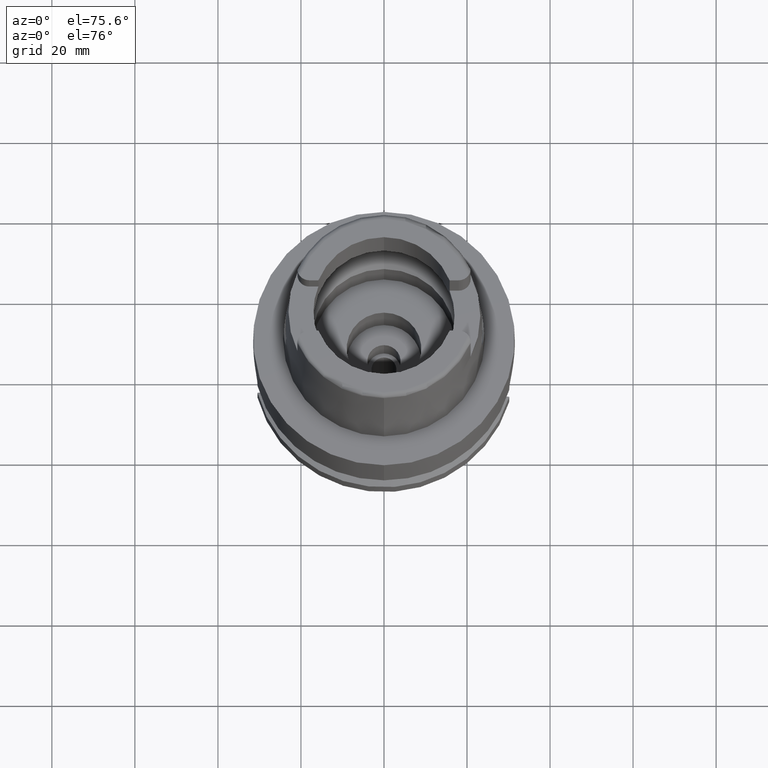
[diagram: clean part render]
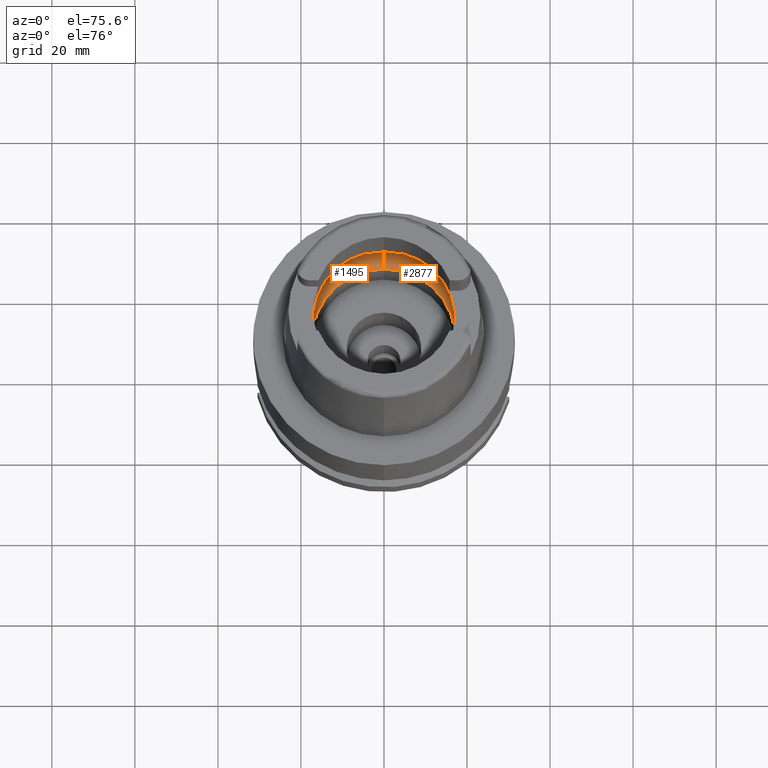
[diagram: same view with one multi-face feature highlighted, each face labeled with its STEP entity id]
A machine part, auxiliary view. The highlighted faces form ONE feature: a constant-radius fillet chain: 2 tangent blend faces with common blend radius 8 mm. The faces share edges in the B-rep.
Their STEP definitions:
[1] entity #1495 (Torus):
#4 = CARTESIAN_POINT ( 'NONE',  ( -19.92705278000903846, 1.287130048445782382, 5.477772474800913116 ) ) ;
#207 = CARTESIAN_POINT ( 'NONE',  ( -19.94501428475999916, 0.0000000000000000000, 5.250000000000000000 ) ) ;
#222 = ORIENTED_EDGE ( 'NONE', *, *, #1696, .F. ) ;
#265 = DIRECTION ( 'NONE',  ( 1.000000000000000000, 0.0000000000000000000, 0.0000000000000000000 ) ) ;
#297 = EDGE_CURVE ( 'NONE', #4978, #3960, #2885, .T. ) ;
#300 = FACE_OUTER_BOUND ( 'NONE', #4637, .T. ) ;
#401 = AXIS2_PLACEMENT_3D ( 'NONE', #1483, #4864, #1508 ) ;
#492 = AXIS2_PLACEMENT_3D ( 'NONE', #4832, #5261, #4887 ) ;
#777 = AXIS2_PLACEMENT_3D ( 'NONE', #3372, #795, #5057 ) ;
#795 = DIRECTION ( 'NONE',  ( 0.0000000000000000000, 0.0000000000000000000, 1.000000000000000000 ) ) ;
#802 = CARTESIAN_POINT ( 'NONE',  ( -19.92590934684917769, 1.321967521133246448, 5.490731887689705992 ) ) ;
#826 = CARTESIAN_POINT ( 'NONE',  ( -19.90995255595169056, 1.795933884452548535, 5.670404923156593391 ) ) ;
#988 = CARTESIAN_POINT ( 'NONE',  ( -19.84575864665999845, 2.479085262491000030, 6.186348233825000875 ) ) ;
#1221 = CARTESIAN_POINT ( 'NONE',  ( -19.92606541691252531, 1.317269316937897727, 5.488968411663657676 ) ) ;
#1374 = ORIENTED_EDGE ( 'NONE', *, *, #4957, .T. ) ;
#1384 = CARTESIAN_POINT ( 'NONE',  ( 0.0000000000000000000, -20.00000000000000000, 6.186348233825000875 ) ) ;
#1391 = CARTESIAN_POINT ( 'NONE',  ( -19.91447754460955721, -1.610668511863835306, 5.613000592307881398 ) ) ;
#1409 = DIRECTION ( 'NONE',  ( 0.0000000000000000000, 0.0000000000000000000, -1.000000000000000000 ) ) ;
#1415 = CARTESIAN_POINT ( 'NONE',  ( -19.84575864665999845, -2.479085262491000030, 6.186348233825000875 ) ) ;
#1445 = CARTESIAN_POINT ( 'NONE',  ( -19.90056097910782995, -1.871180122140724489, 5.748256501260665452 ) ) ;
#1483 = CARTESIAN_POINT ( 'NONE',  ( 0.0000000000000000000, 1.300407714776999850E-14, 6.186348233825000875 ) ) ;
#1495 = ADVANCED_FACE ( 'NONE', ( #300 ), #3403, .F. ) ;
#1508 = DIRECTION ( 'NONE',  ( 0.0000000000000000000, -1.000000000000000000, 0.0000000000000000000 ) ) ;
#1622 = CARTESIAN_POINT ( 'NONE',  ( -19.93292026788402538, 1.081805184546577481, 5.409024518554498506 ) ) ;
#1646 = B_SPLINE_CURVE_WITH_KNOTS ( 'NONE', 3,
 ( #2935, #3354, #4619, #3298, #5064, #1622, #3327, #2890, #4, #5017, #1221, #802, #826, #1674, #2492 ),
 .UNSPECIFIED., .F., .F.,
 ( 4, 2, 2, 1, 1, 1, 2, 2, 4 ),
 ( 0.0000000000000000000, 0.2499999999999999445, 0.3749999999999998335, 0.4374999999999993894, 0.4687499999999992784, 0.4843749999999993894, 0.4921874999999996114, 0.4999999999999998335, 1.000000000000000000 ),
 .UNSPECIFIED. ) ;
#1674 = CARTESIAN_POINT ( 'NONE',  ( -19.88331748558554679, 2.178416437689206564, 5.921431423074808187 ) ) ;
#1696 = EDGE_CURVE ( 'NONE', #3960, #4539, #2063, .T. ) ;
#1745 = VERTEX_POINT ( 'NONE', #4552 ) ;
#1855 = CARTESIAN_POINT ( 'NONE',  ( -19.92517005465364477, -1.343825724865890026, 5.499044007117803723 ) ) ;
#1895 = ORIENTED_EDGE ( 'NONE', *, *, #4053, .F. ) ;
#2063 = CIRCLE ( 'NONE', #401, 20.00000000000000000 ) ;
#2195 = CARTESIAN_POINT ( 'NONE',  ( -19.93856411452979316, -0.9461205214876701186, 5.348254081022309592 ) ) ;
#2211 = CARTESIAN_POINT ( 'NONE',  ( -19.84575864665999845, -2.479085262491000030, 6.186348233825000875 ) ) ;
#2347 = DIRECTION ( 'NONE',  ( 0.0000000000000000000, 0.0000000000000000000, -1.000000000000000000 ) ) ;
#2358 = EDGE_CURVE ( 'NONE', #2882, #4978, #3527, .T. ) ;
#2492 = CARTESIAN_POINT ( 'NONE',  ( -19.84575864665999845, 2.479085262491000030, 6.186348233825000875 ) ) ;
#2584 = VERTEX_POINT ( 'NONE', #988 ) ;
#2643 = CARTESIAN_POINT ( 'NONE',  ( -19.88058469725548960, -2.158465908504980213, 5.925243384237681710 ) ) ;
#2687 = AXIS2_PLACEMENT_3D ( 'NONE', #3913, #1409, #2692 ) ;
#2692 = DIRECTION ( 'NONE',  ( -0.9922879323327794543, 0.1239542631244973381, 0.0000000000000000000 ) ) ;
#2709 = CIRCLE ( 'NONE', #5375, 7.999999999999992895 ) ;
#2882 = VERTEX_POINT ( 'NONE', #4567 ) ;
#2885 = CIRCLE ( 'NONE', #492, 7.999999999999992895 ) ;
#2890 = CARTESIAN_POINT ( 'NONE',  ( -19.92839760948977812, 1.244563320345577928, 5.462382395228216225 ) ) ;
#2935 = CARTESIAN_POINT ( 'NONE',  ( -19.94501428475999916, 0.0000000000000000000, 5.250000000000000000 ) ) ;
#3049 = AXIS2_PLACEMENT_3D ( 'NONE', #3635, #2347, #5334 ) ;
#3063 = CARTESIAN_POINT ( 'NONE',  ( -19.86453683997870456, -2.328760665727150680, 6.053898476926370620 ) ) ;
#3094 = CARTESIAN_POINT ( 'NONE',  ( -19.91819177005300645, -1.528964289322848114, 5.574905501562674282 ) ) ;
#3121 = CARTESIAN_POINT ( 'NONE',  ( -19.92466833620654398, -1.358330481555162672, 5.504646120092099970 ) ) ;
#3211 = ORIENTED_EDGE ( 'NONE', *, *, #3374, .F. ) ;
#3298 = CARTESIAN_POINT ( 'NONE',  ( -19.93856414242614861, 0.8186925878071447116, 5.338707303697744599 ) ) ;
#3327 = CARTESIAN_POINT ( 'NONE',  ( -19.93095499014168226, 1.158122409084411109, 5.432637980145560874 ) ) ;
#3354 = CARTESIAN_POINT ( 'NONE',  ( -19.94501428476000982, 0.2480393544993953481, 5.249999999999997335 ) ) ;
#3372 = CARTESIAN_POINT ( 'NONE',  ( 0.0000000000000000000, 1.300407714776999850E-14, 0.1500000000000999700 ) ) ;
#3374 = EDGE_CURVE ( 'NONE', #4539, #4533, #4636, .T. ) ;
#3403 = TOROIDAL_SURFACE ( 'NONE', #3049, 12.00000000000000000, 8.000000000000000000 ) ;
#3484 = CARTESIAN_POINT ( 'NONE',  ( -19.90653715571480120, -1.770134510244638193, 5.691949820981152541 ) ) ;
#3527 = CIRCLE ( 'NONE', #777, 17.25000000000000000 ) ;
#3546 = CARTESIAN_POINT ( 'NONE',  ( -19.92207708731347537, -1.430235645114882326, 5.533216160818618334 ) ) ;
#3564 = CARTESIAN_POINT ( 'NONE',  ( -19.94501428475999916, 0.0000000000000000000, 5.250000000000000000 ) ) ;
#3635 = CARTESIAN_POINT ( 'NONE',  ( 0.0000000000000000000, 1.300407714776999850E-14, 6.186348233825000875 ) ) ;
#3649 = ORIENTED_EDGE ( 'NONE', *, *, #2358, .F. ) ;
#3711 = CARTESIAN_POINT ( 'NONE',  ( 0.0000000000000000000, 12.00000000000000000, 6.186348233825000875 ) ) ;
#3913 = CARTESIAN_POINT ( 'NONE',  ( 0.0000000000000000000, 1.300407714776999850E-14, 6.186348233825000875 ) ) ;
#3960 = VERTEX_POINT ( 'NONE', #1384 ) ;
#3982 = CARTESIAN_POINT ( 'NONE',  ( -19.92390775950450532, -1.380027868491152443, 5.513103966555285673 ) ) ;
#4053 = EDGE_CURVE ( 'NONE', #2584, #1745, #4285, .T. ) ;
#4147 = DIRECTION ( 'NONE',  ( 0.0000000000000000000, 0.6562500000000006661, -0.7545435292281016393 ) ) ;
#4224 = EDGE_CURVE ( 'NONE', #4533, #2584, #1646, .T. ) ;
#4285 = CIRCLE ( 'NONE', #2687, 20.00000000000001421 ) ;
#4299 = ORIENTED_EDGE ( 'NONE', *, *, #4224, .F. ) ;
#4330 = CARTESIAN_POINT ( 'NONE',  ( -19.92546220624969067, -1.335247853971804455, 5.495766252403495145 ) ) ;
#4435 = ORIENTED_EDGE ( 'NONE', *, *, #297, .F. ) ;
#4533 = VERTEX_POINT ( 'NONE', #3564 ) ;
#4539 = VERTEX_POINT ( 'NONE', #2211 ) ;
#4552 = CARTESIAN_POINT ( 'NONE',  ( 0.0000000000000000000, 20.00000000000000000, 6.186348233825000875 ) ) ;
#4567 = CARTESIAN_POINT ( 'NONE',  ( 0.0000000000000000000, 17.25000000000000000, 0.1499999999999999944 ) ) ;
#4619 = CARTESIAN_POINT ( 'NONE',  ( -19.94340174917653385, 0.4850934172101355468, 5.274617949540510331 ) ) ;
#4636 = B_SPLINE_CURVE_WITH_KNOTS ( 'NONE', 3,
 ( #1415, #3063, #2643, #1445, #3484, #1391, #3094, #3546, #3982, #3121, #1855, #4330, #2195, #5260, #207 ),
 .UNSPECIFIED., .F., .F.,
 ( 4, 2, 2, 1, 1, 1, 2, 2, 4 ),
 ( 0.0000000000000000000, 0.2500000000000004996, 0.3750000000000006106, 0.4375000000000004996, 0.4687500000000004996, 0.4843750000000006106, 0.4921875000000006661, 0.5000000000000006661, 1.000000000000000000 ),
 .UNSPECIFIED. ) ;
#4637 = EDGE_LOOP ( 'NONE', ( #222, #4435, #3649, #1374, #1895, #4299, #3211 ) ) ;
#4832 = CARTESIAN_POINT ( 'NONE',  ( 0.0000000000000000000, -12.00000000000000000, 6.186348233825000875 ) ) ;
#4864 = DIRECTION ( 'NONE',  ( 0.0000000000000000000, 0.0000000000000000000, -1.000000000000000000 ) ) ;
#4887 = DIRECTION ( 'NONE',  ( 0.0000000000000000000, -0.6562500000000006661, -0.7545435292281016393 ) ) ;
#4957 = EDGE_CURVE ( 'NONE', #2882, #1745, #2709, .T. ) ;
#4978 = VERTEX_POINT ( 'NONE', #4992 ) ;
#4992 = CARTESIAN_POINT ( 'NONE',  ( 0.0000000000000000000, -17.25000000000000000, 0.1500000000000999700 ) ) ;
#5017 = CARTESIAN_POINT ( 'NONE',  ( -19.92646225184126507, 1.305232378195160470, 5.484475898738186750 ) ) ;
#5057 = DIRECTION ( 'NONE',  ( 0.0000000000000000000, 1.000000000000000000, 0.0000000000000000000 ) ) ;
#5064 = CARTESIAN_POINT ( 'NONE',  ( -19.93654847294682142, 0.9262660664357793561, 5.364596220942165594 ) ) ;
#5260 = CARTESIAN_POINT ( 'NONE',  ( -19.94501428476000271, -0.4961205090555425579, 5.249999999999998224 ) ) ;
#5261 = DIRECTION ( 'NONE',  ( -1.000000000000000000, 0.0000000000000000000, 0.0000000000000000000 ) ) ;
#5334 = DIRECTION ( 'NONE',  ( 0.0000000000000000000, -1.000000000000000000, 0.0000000000000000000 ) ) ;
#5375 = AXIS2_PLACEMENT_3D ( 'NONE', #3711, #265, #4147 ) ;
[2] entity #2877 (Torus):
#66 = CARTESIAN_POINT ( 'NONE',  ( 0.0000000000000000000, 1.300407714776999850E-14, 6.186348233825000875 ) ) ;
#123 = CIRCLE ( 'NONE', #3224, 17.25000000000000000 ) ;
#150 = CARTESIAN_POINT ( 'NONE',  ( 19.84575864665999845, -2.479085262489999941, 6.186348233825000875 ) ) ;
#193 = EDGE_CURVE ( 'NONE', #4978, #2882, #123, .T. ) ;
#208 = CARTESIAN_POINT ( 'NONE',  ( 19.92606514397989059, -1.317277072706851904, 5.488971321412958737 ) ) ;
#211 = CIRCLE ( 'NONE', #1787, 20.00000000000000000 ) ;
#214 = CARTESIAN_POINT ( 'NONE',  ( 19.90056123285527789, 1.871176222693615943, 5.748254233190306373 ) ) ;
#265 = DIRECTION ( 'NONE',  ( 1.000000000000000000, 0.0000000000000000000, 0.0000000000000000000 ) ) ;
#297 = EDGE_CURVE ( 'NONE', #4978, #3960, #2885, .T. ) ;
#298 = EDGE_CURVE ( 'NONE', #2157, #1917, #4141, .T. ) ;
#327 = EDGE_LOOP ( 'NONE', ( #1014, #2676, #1396, #4588, #3677, #1147, #1257 ) ) ;
#484 = TOROIDAL_SURFACE ( 'NONE', #3688, 12.00000000000000000, 8.000000000000000000 ) ;
#487 = EDGE_CURVE ( 'NONE', #1745, #1501, #211, .T. ) ;
#488 = CARTESIAN_POINT ( 'NONE',  ( 0.0000000000000000000, 1.300407714776999850E-14, 0.1500000000000999700 ) ) ;
#492 = AXIS2_PLACEMENT_3D ( 'NONE', #4832, #5261, #4887 ) ;
#612 = CARTESIAN_POINT ( 'NONE',  ( 19.92390804158324613, 1.380020403602153722, 5.513101011347385061 ) ) ;
#1010 = CARTESIAN_POINT ( 'NONE',  ( 19.90995224940896335, -1.795938227408923726, 5.670407759516152169 ) ) ;
#1014 = ORIENTED_EDGE ( 'NONE', *, *, #1473, .F. ) ;
#1094 = CARTESIAN_POINT ( 'NONE',  ( 19.92590906856741739, -1.321975393466675808, 5.490734853381008307 ) ) ;
#1102 = CARTESIAN_POINT ( 'NONE',  ( 19.92207737119581168, 1.430228553718336348, 5.533213232082355937 ) ) ;
#1134 = CARTESIAN_POINT ( 'NONE',  ( 19.93856420767916759, 0.9461146681545778980, 5.348252842338863999 ) ) ;
#1147 = ORIENTED_EDGE ( 'NONE', *, *, #3483, .F. ) ;
#1240 = DIRECTION ( 'NONE',  ( 0.0000000000000000000, 0.0000000000000000000, -1.000000000000000000 ) ) ;
#1257 = ORIENTED_EDGE ( 'NONE', *, *, #298, .F. ) ;
#1384 = CARTESIAN_POINT ( 'NONE',  ( 0.0000000000000000000, -20.00000000000000000, 6.186348233825000875 ) ) ;
#1396 = ORIENTED_EDGE ( 'NONE', *, *, #4957, .F. ) ;
#1446 = CARTESIAN_POINT ( 'NONE',  ( 19.93654835100833367, -0.9262716855155007645, 5.364597633136126476 ) ) ;
#1455 = CARTESIAN_POINT ( 'NONE',  ( 19.91447782633000330, 1.610662747508702086, 5.612997844426586447 ) ) ;
#1473 = EDGE_CURVE ( 'NONE', #1501, #2157, #3927, .T. ) ;
#1487 = CARTESIAN_POINT ( 'NONE',  ( 19.84575864665999845, 2.479085262491000030, 6.186348233825000875 ) ) ;
#1501 = VERTEX_POINT ( 'NONE', #3578 ) ;
#1505 = CARTESIAN_POINT ( 'NONE',  ( 0.0000000000000000000, 1.300407714776999850E-14, 6.186348233825000875 ) ) ;
#1507 = CARTESIAN_POINT ( 'NONE',  ( 19.92705252129803029, -1.287137646786902012, 5.477775250979194155 ) ) ;
#1745 = VERTEX_POINT ( 'NONE', #4552 ) ;
#1787 = AXIS2_PLACEMENT_3D ( 'NONE', #66, #3452, #4709 ) ;
#1856 = CARTESIAN_POINT ( 'NONE',  ( 19.94501428475999916, -0.2480409057309866105, 5.249999999999999112 ) ) ;
#1862 = CARTESIAN_POINT ( 'NONE',  ( 19.94501428475999916, 0.4961173928737935279, 5.250000000000000888 ) ) ;
#1883 = CARTESIAN_POINT ( 'NONE',  ( 19.84575864665999845, -2.479085262489999941, 6.186348233825000875 ) ) ;
#1917 = VERTEX_POINT ( 'NONE', #150 ) ;
#1947 = CARTESIAN_POINT ( 'NONE',  ( 19.92839737014920942, -1.244570694301886604, 5.462384987445608076 ) ) ;
#2157 = VERTEX_POINT ( 'NONE', #4510 ) ;
#2250 = CARTESIAN_POINT ( 'NONE',  ( 19.93095478763670059, -1.158129320264685180, 5.432640215635148095 ) ) ;
#2368 = DIRECTION ( 'NONE',  ( 0.9922879323327794543, -0.1239542631244973381, 0.0000000000000000000 ) ) ;
#2375 = CARTESIAN_POINT ( 'NONE',  ( 19.92546248860871927, 1.335239979082043948, 5.495763251848394759 ) ) ;
#2400 = CARTESIAN_POINT ( 'NONE',  ( 19.90653742518825453, 1.770129897938285568, 5.691947325584132855 ) ) ;
#2467 = FACE_OUTER_BOUND ( 'NONE', #327, .T. ) ;
#2644 = DIRECTION ( 'NONE',  ( 0.0000000000000000000, 0.0000000000000000000, 1.000000000000000000 ) ) ;
#2676 = ORIENTED_EDGE ( 'NONE', *, *, #487, .F. ) ;
#2709 = CIRCLE ( 'NONE', #5375, 7.999999999999992895 ) ;
#2739 = CARTESIAN_POINT ( 'NONE',  ( 19.92646198462450258, -1.305240071194263773, 5.484478754908657550 ) ) ;
#2767 = CARTESIAN_POINT ( 'NONE',  ( 19.86453694704406558, 2.328759808639310869, 6.053897721753374483 ) ) ;
#2877 = ADVANCED_FACE ( 'NONE', ( #2467 ), #484, .F. ) ;
#2882 = VERTEX_POINT ( 'NONE', #4567 ) ;
#2885 = CIRCLE ( 'NONE', #492, 7.999999999999992895 ) ;
#2889 = CARTESIAN_POINT ( 'NONE',  ( 0.0000000000000000000, 1.300407714776999850E-14, 6.186348233825000875 ) ) ;
#3122 = CARTESIAN_POINT ( 'NONE',  ( 19.94340172595015304, -0.4850964368296419305, 5.274618258025038919 ) ) ;
#3162 = CARTESIAN_POINT ( 'NONE',  ( 19.92466861724647842, 1.358322854854825179, 5.504643156173055552 ) ) ;
#3212 = CARTESIAN_POINT ( 'NONE',  ( 19.91819205506146773, 1.528957928330905380, 5.574902649599744464 ) ) ;
#3224 = AXIS2_PLACEMENT_3D ( 'NONE', #488, #2644, #3923 ) ;
#3240 = CARTESIAN_POINT ( 'NONE',  ( 19.88058488114089428, 2.158463974390028017, 5.925241924213342060 ) ) ;
#3267 = CARTESIAN_POINT ( 'NONE',  ( 19.92517033494197776, 1.343817989907872601, 5.499041037985621827 ) ) ;
#3452 = DIRECTION ( 'NONE',  ( 0.0000000000000000000, 0.0000000000000000000, -1.000000000000000000 ) ) ;
#3483 = EDGE_CURVE ( 'NONE', #1917, #3960, #3930, .T. ) ;
#3578 = CARTESIAN_POINT ( 'NONE',  ( 19.84575864665999845, 2.479085262491000030, 6.186348233825000875 ) ) ;
#3631 = CARTESIAN_POINT ( 'NONE',  ( 19.88331727194833576, -2.178418147926865611, 5.921432929951146562 ) ) ;
#3656 = CARTESIAN_POINT ( 'NONE',  ( 19.93292009368618878, -1.081811675276309170, 5.409026469001385173 ) ) ;
#3677 = ORIENTED_EDGE ( 'NONE', *, *, #297, .T. ) ;
#3688 = AXIS2_PLACEMENT_3D ( 'NONE', #2889, #1240, #4235 ) ;
#3711 = CARTESIAN_POINT ( 'NONE',  ( 0.0000000000000000000, 12.00000000000000000, 6.186348233825000875 ) ) ;
#3923 = DIRECTION ( 'NONE',  ( 0.0000000000000000000, -1.000000000000000000, 0.0000000000000000000 ) ) ;
#3927 = B_SPLINE_CURVE_WITH_KNOTS ( 'NONE', 3,
 ( #1487, #2767, #3240, #214, #2400, #1455, #3212, #1102, #612, #3162, #3267, #2375, #1134, #1862, #4481 ),
 .UNSPECIFIED., .F., .F.,
 ( 4, 2, 2, 1, 1, 1, 2, 2, 4 ),
 ( 0.0000000000000000000, 0.2500000000000076050, 0.3750000000000112688, 0.4375000000000131006, 0.4687500000000139333, 0.4843750000000144329, 0.4921875000000146549, 0.5000000000000147660, 1.000000000000000000 ),
 .UNSPECIFIED. ) ;
#3930 = CIRCLE ( 'NONE', #5068, 20.00000000000001421 ) ;
#3960 = VERTEX_POINT ( 'NONE', #1384 ) ;
#4043 = CARTESIAN_POINT ( 'NONE',  ( 19.94501428475999916, 0.0000000000000000000, 5.250000000000000000 ) ) ;
#4072 = DIRECTION ( 'NONE',  ( 0.0000000000000000000, 0.0000000000000000000, -1.000000000000000000 ) ) ;
#4141 = B_SPLINE_CURVE_WITH_KNOTS ( 'NONE', 3,
 ( #4043, #1856, #3122, #4473, #1446, #3656, #2250, #1947, #1507, #2739, #208, #1094, #1010, #3631, #1883 ),
 .UNSPECIFIED., .F., .F.,
 ( 4, 2, 2, 1, 1, 1, 2, 2, 4 ),
 ( 0.0000000000000000000, 0.2499999999999984457, 0.3749999999999977240, 0.4374999999999975020, 0.4687499999999973355, 0.4843749999999972244, 0.4921874999999972800, 0.4999999999999973355, 1.000000000000000000 ),
 .UNSPECIFIED. ) ;
#4147 = DIRECTION ( 'NONE',  ( 0.0000000000000000000, 0.6562500000000006661, -0.7545435292281016393 ) ) ;
#4235 = DIRECTION ( 'NONE',  ( 0.0000000000000000000, -1.000000000000000000, 0.0000000000000000000 ) ) ;
#4473 = CARTESIAN_POINT ( 'NONE',  ( 19.93856404952061823, -0.8186975846318078620, 5.338708399480539768 ) ) ;
#4481 = CARTESIAN_POINT ( 'NONE',  ( 19.94501428475999916, 0.0000000000000000000, 5.250000000000000000 ) ) ;
#4510 = CARTESIAN_POINT ( 'NONE',  ( 19.94501428475999916, 0.0000000000000000000, 5.250000000000000000 ) ) ;
#4552 = CARTESIAN_POINT ( 'NONE',  ( 0.0000000000000000000, 20.00000000000000000, 6.186348233825000875 ) ) ;
#4567 = CARTESIAN_POINT ( 'NONE',  ( 0.0000000000000000000, 17.25000000000000000, 0.1499999999999999944 ) ) ;
#4588 = ORIENTED_EDGE ( 'NONE', *, *, #193, .F. ) ;
#4709 = DIRECTION ( 'NONE',  ( 0.0000000000000000000, 1.000000000000000000, 0.0000000000000000000 ) ) ;
#4832 = CARTESIAN_POINT ( 'NONE',  ( 0.0000000000000000000, -12.00000000000000000, 6.186348233825000875 ) ) ;
#4887 = DIRECTION ( 'NONE',  ( 0.0000000000000000000, -0.6562500000000006661, -0.7545435292281016393 ) ) ;
#4957 = EDGE_CURVE ( 'NONE', #2882, #1745, #2709, .T. ) ;
#4978 = VERTEX_POINT ( 'NONE', #4992 ) ;
#4992 = CARTESIAN_POINT ( 'NONE',  ( 0.0000000000000000000, -17.25000000000000000, 0.1500000000000999700 ) ) ;
#5068 = AXIS2_PLACEMENT_3D ( 'NONE', #1505, #4072, #2368 ) ;
#5261 = DIRECTION ( 'NONE',  ( -1.000000000000000000, 0.0000000000000000000, 0.0000000000000000000 ) ) ;
#5375 = AXIS2_PLACEMENT_3D ( 'NONE', #3711, #265, #4147 ) ;